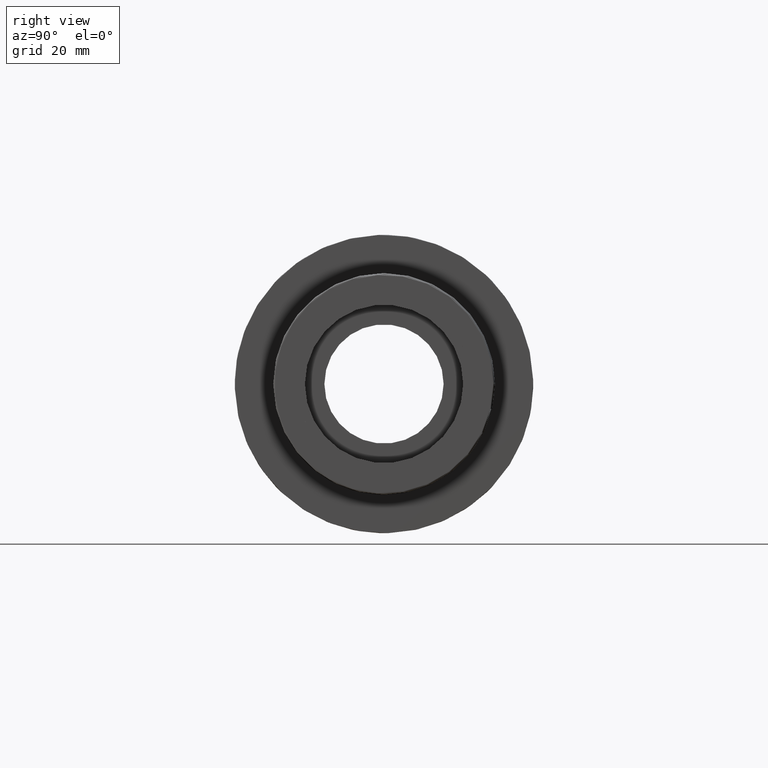
[diagram: clean part render]
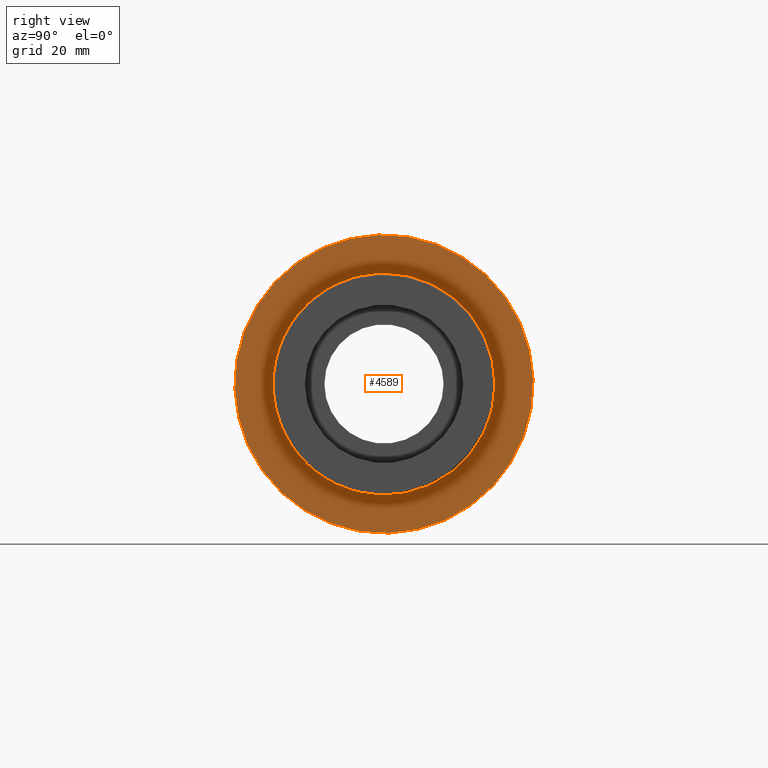
[diagram: same view with one face highlighted and labeled with its STEP entity id]
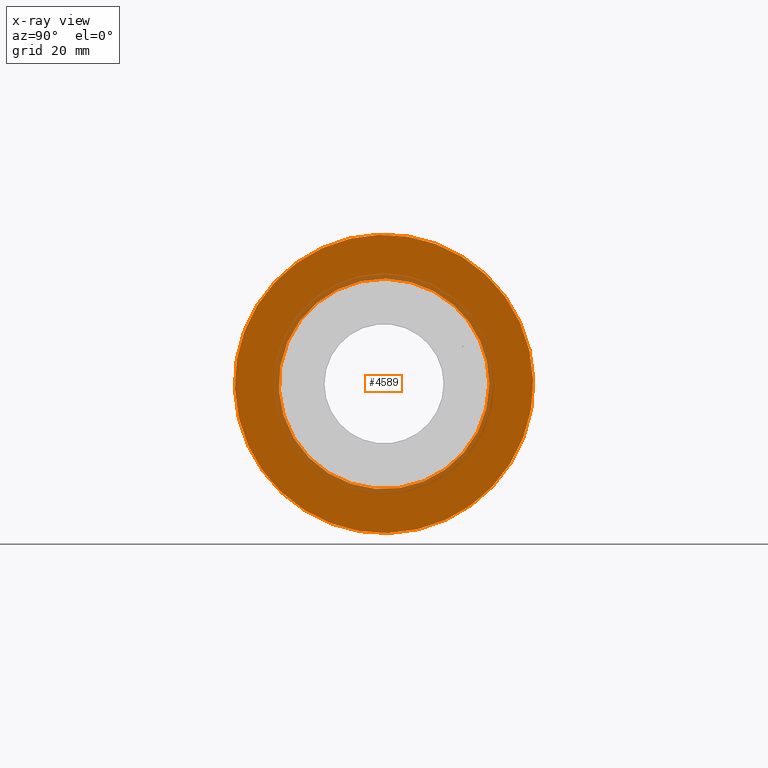
[diagram: x-ray of the same camera — body ghosted, the highlighted face saturated]
A machine part, right view. The second image highlights one B-rep face of the part: STEP entity #4589.
The next image is the same camera in x-ray: the body ghosted, the highlighted face saturated — about 11% of this face is hidden behind the body in this view.
In plain terms, the highlighted planar face has unit normal (1, 0, 0).
Its self-contained STEP definition (entity closure, byte-faithful):
#68=FACE_BOUND('',#1360,.T.);
#144=PLANE('',#5062);
#1074=FACE_OUTER_BOUND('',#1359,.T.);
#1359=EDGE_LOOP('',(#4208));
#1360=EDGE_LOOP('',(#4209));
#1634=CIRCLE('',#4782,36.7);
#1792=CIRCLE('',#5063,25.90308);
#1994=VERTEX_POINT('',#7346);
#2255=VERTEX_POINT('',#9453);
#2508=EDGE_CURVE('',#1994,#1994,#1634,.T.);
#2929=EDGE_CURVE('',#2255,#2255,#1792,.T.);
#4208=ORIENTED_EDGE('',*,*,#2508,.T.);
#4209=ORIENTED_EDGE('',*,*,#2929,.F.);
#4589=ADVANCED_FACE('',(#1074,#68),#144,.T.);
#4782=AXIS2_PLACEMENT_3D('',#7347,#5541,#5542);
#5062=AXIS2_PLACEMENT_3D('',#9452,#6271,#6272);
#5063=AXIS2_PLACEMENT_3D('',#9454,#6273,#6274);
#5541=DIRECTION('center_axis',(1.,0.,0.));
#5542=DIRECTION('ref_axis',(0.,0.,-1.));
#6271=DIRECTION('center_axis',(1.,0.,0.));
#6272=DIRECTION('ref_axis',(0.,0.,-1.));
#6273=DIRECTION('center_axis',(1.,0.,0.));
#6274=DIRECTION('ref_axis',(0.,0.,-1.));
#7346=CARTESIAN_POINT('',(-49.245,24.8920171487567,26.9680826583204));
#7347=CARTESIAN_POINT('Origin',(-49.245,0.,0.));
#9452=CARTESIAN_POINT('Origin',(-49.245,25.90308,0.));
#9453=CARTESIAN_POINT('',(-49.245,17.2487730008224,19.3248385103861));
#9454=CARTESIAN_POINT('Origin',(-49.245,0.,0.));